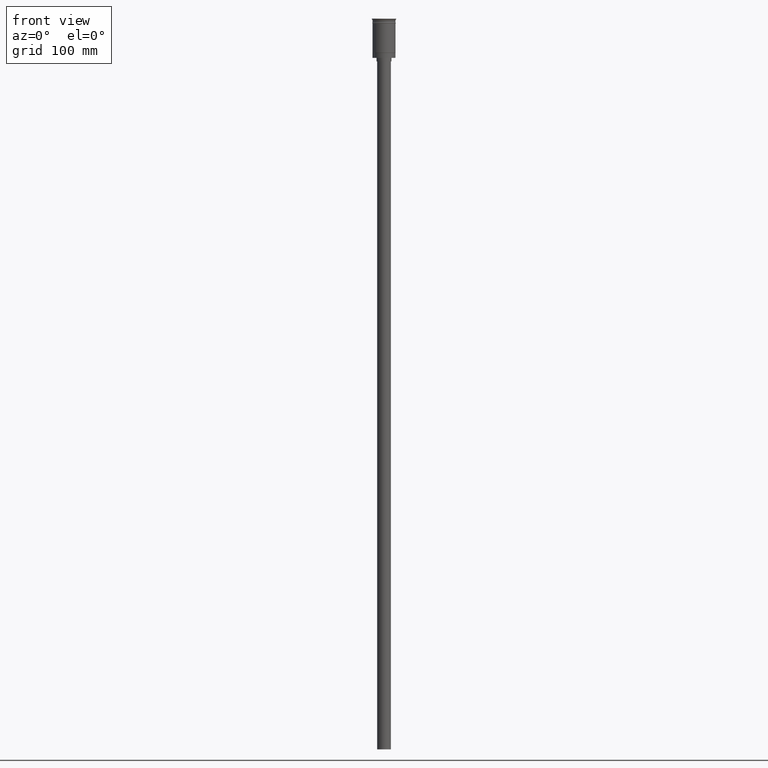
[diagram: clean part render]
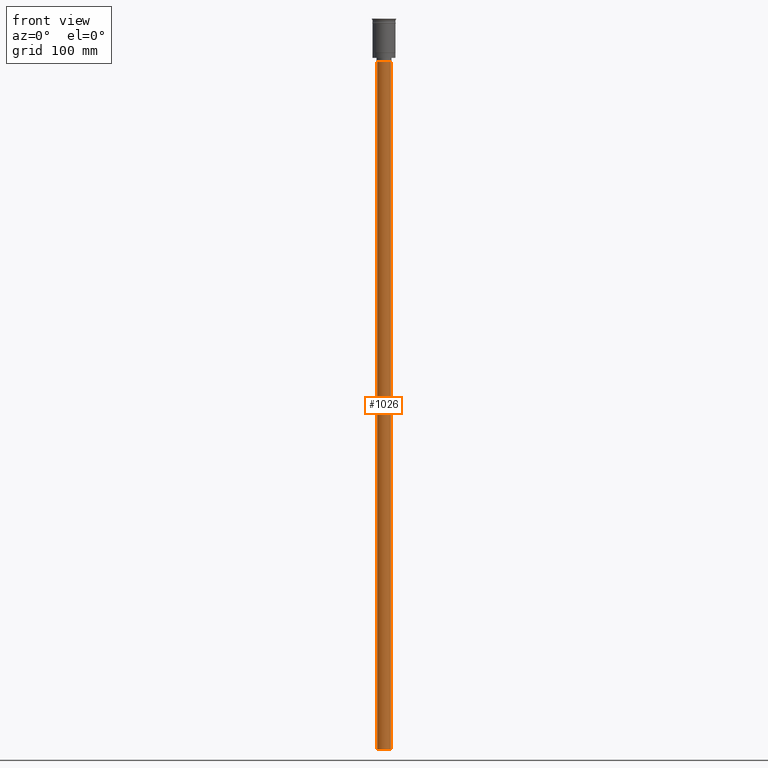
[diagram: same view with one face highlighted and labeled with its STEP entity id]
A machine part, front view. The second image highlights one B-rep face of the part: STEP entity #1026.
In plain terms, the highlighted cylindrical surface (edge-blend (fillet) strip) has radius 6 mm, axis along (-0, -0, 1).
Its self-contained STEP definition (entity closure, byte-faithful):
#7 = FACE_OUTER_BOUND ( 'NONE', #441, .T. ) ;
#30 = VERTEX_POINT ( 'NONE', #1468 ) ;
#35 = CARTESIAN_POINT ( 'NONE',  ( -6.000000000000000888, 7.347880794884120722E-16, -37.00000000000000000 ) ) ;
#167 = EDGE_CURVE ( 'NONE', #1528, #1535, #1050, .T. ) ;
#196 = AXIS2_PLACEMENT_3D ( 'NONE', #980, #1472, #368 ) ;
#260 = DIRECTION ( 'NONE',  ( 0.000000000000000000, 0.000000000000000000, -1.000000000000000000 ) ) ;
#284 = CIRCLE ( 'NONE', #196, 6.000000000000000888 ) ;
#343 = DIRECTION ( 'NONE',  ( -0.000000000000000000, -0.000000000000000000, 1.000000000000000000 ) ) ;
#358 = VERTEX_POINT ( 'NONE', #536 ) ;
#368 = DIRECTION ( 'NONE',  ( -1.000000000000000000, 0.000000000000000000, 0.000000000000000000 ) ) ;
#407 = EDGE_CURVE ( 'NONE', #30, #1535, #452, .T. ) ;
#441 = EDGE_LOOP ( 'NONE', ( #479, #1132, #476, #804 ) ) ;
#444 = CARTESIAN_POINT ( 'NONE',  ( -6.000000000000000888, 7.347880794884120722E-16, -634.0000000000000000 ) ) ;
#452 = LINE ( 'NONE', #444, #1595 ) ;
#476 = ORIENTED_EDGE ( 'NONE', *, *, #1542, .T. ) ;
#479 = ORIENTED_EDGE ( 'NONE', *, *, #407, .F. ) ;
#509 = DIRECTION ( 'NONE',  ( -0.000000000000000000, -0.000000000000000000, 1.000000000000000000 ) ) ;
#526 = CARTESIAN_POINT ( 'NONE',  ( 6.000000000000000888, 0.000000000000000000, -634.0000000000000000 ) ) ;
#532 = LINE ( 'NONE', #526, #1372 ) ;
#536 = CARTESIAN_POINT ( 'NONE',  ( 6.000000000000000888, 0.000000000000000000, -634.0000000000000000 ) ) ;
#596 = CARTESIAN_POINT ( 'NONE',  ( 0.000000000000000000, 0.000000000000000000, -634.0000000000000000 ) ) ;
#604 = CYLINDRICAL_SURFACE ( 'NONE', #1269, 6.000000000000000888 ) ;
#638 = CARTESIAN_POINT ( 'NONE',  ( 6.000000000000000888, 0.000000000000000000, -37.00000000000000000 ) ) ;
#667 = EDGE_CURVE ( 'NONE', #358, #30, #284, .T. ) ;
#804 = ORIENTED_EDGE ( 'NONE', *, *, #167, .T. ) ;
#980 = CARTESIAN_POINT ( 'NONE',  ( 0.000000000000000000, 0.000000000000000000, -634.0000000000000000 ) ) ;
#1026 = ADVANCED_FACE ( 'NONE', ( #7 ), #604, .T. ) ;
#1050 = CIRCLE ( 'NONE', #1266, 6.000000000000000888 ) ;
#1132 = ORIENTED_EDGE ( 'NONE', *, *, #667, .F. ) ;
#1266 = AXIS2_PLACEMENT_3D ( 'NONE', #1378, #260, #1494 ) ;
#1269 = AXIS2_PLACEMENT_3D ( 'NONE', #596, #509, #1602 ) ;
#1372 = VECTOR ( 'NONE', #1417, 1000.000000000000000 ) ;
#1378 = CARTESIAN_POINT ( 'NONE',  ( 0.000000000000000000, 0.000000000000000000, -37.00000000000000000 ) ) ;
#1417 = DIRECTION ( 'NONE',  ( -0.000000000000000000, -0.000000000000000000, 1.000000000000000000 ) ) ;
#1468 = CARTESIAN_POINT ( 'NONE',  ( -6.000000000000000888, 7.347880794884120722E-16, -634.0000000000000000 ) ) ;
#1472 = DIRECTION ( 'NONE',  ( 0.000000000000000000, 0.000000000000000000, -1.000000000000000000 ) ) ;
#1494 = DIRECTION ( 'NONE',  ( -1.000000000000000000, 0.000000000000000000, 0.000000000000000000 ) ) ;
#1528 = VERTEX_POINT ( 'NONE', #638 ) ;
#1535 = VERTEX_POINT ( 'NONE', #35 ) ;
#1542 = EDGE_CURVE ( 'NONE', #358, #1528, #532, .T. ) ;
#1595 = VECTOR ( 'NONE', #343, 1000.000000000000000 ) ;
#1602 = DIRECTION ( 'NONE',  ( 1.000000000000000000, 0.000000000000000000, 0.000000000000000000 ) ) ;